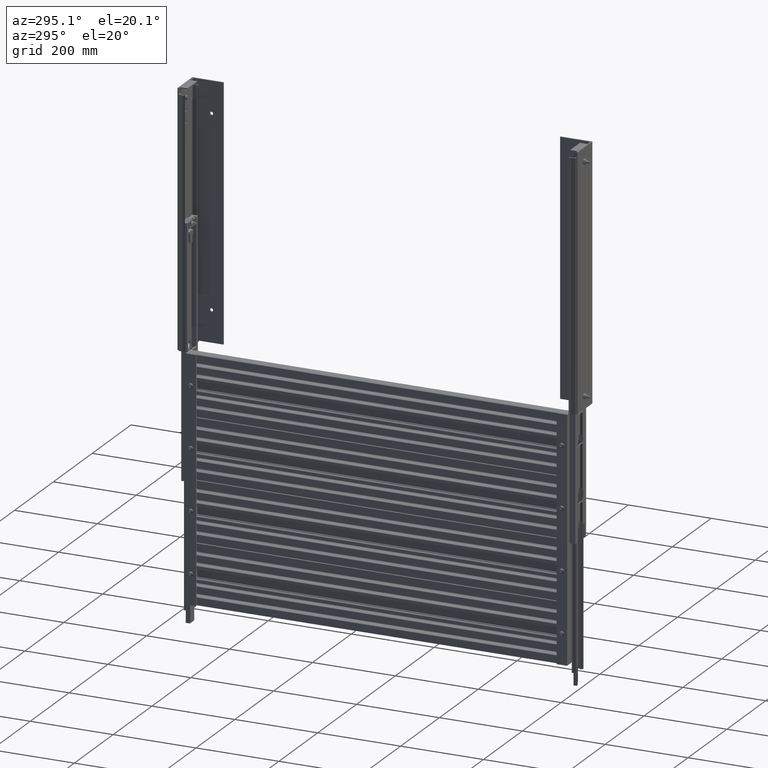
[diagram: clean part render]
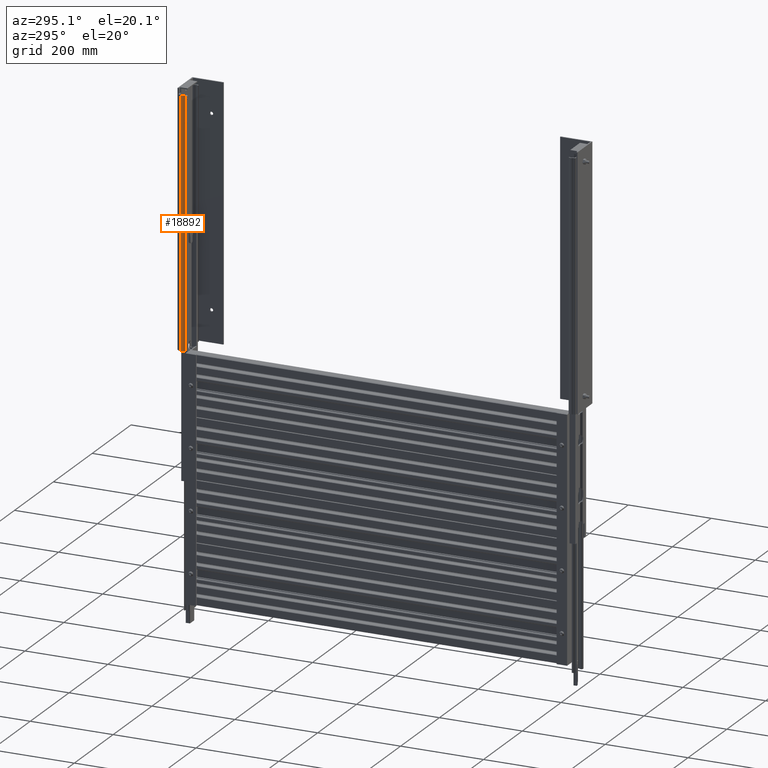
[diagram: same view with one face highlighted and labeled with its STEP entity id]
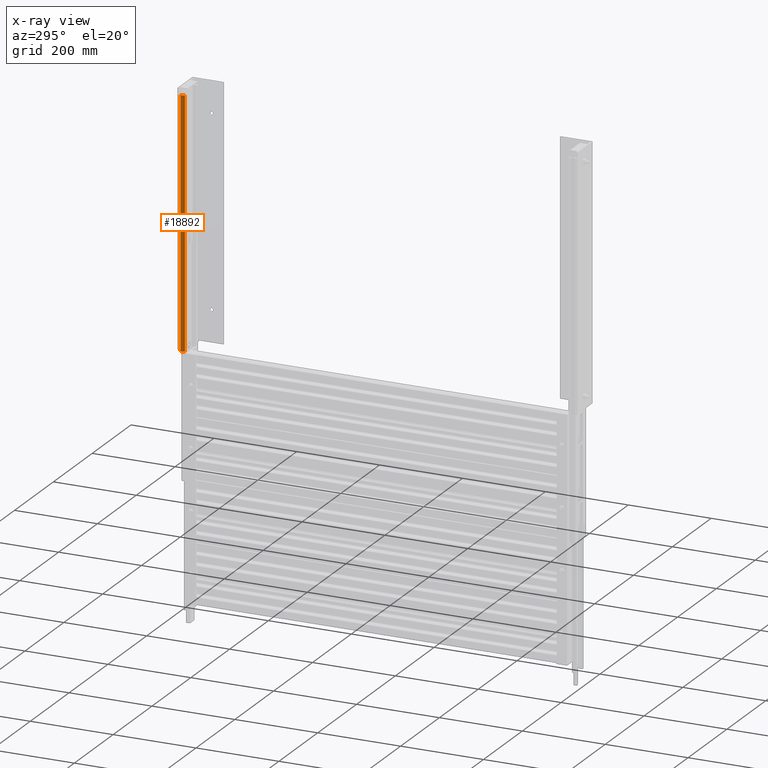
[diagram: x-ray of the same camera — body ghosted, the highlighted face saturated]
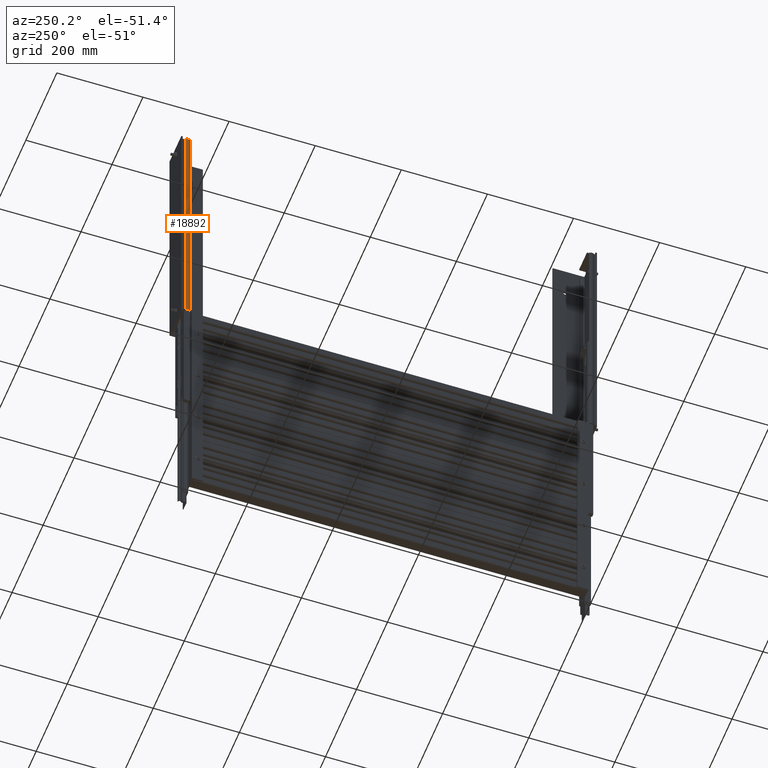
[diagram: same view with one face highlighted and labeled with its STEP entity id]
A machine part, auxiliary view. The second image highlights one B-rep face of the part: STEP entity #18892.
The next image is the same camera in x-ray: the body ghosted, the highlighted face saturated — about 0% of this face is hidden behind the body in this view.
A second angle (auxiliary view) of the same face is appended — the face is thin or edge-on in the first view.
In plain terms, the highlighted cylindrical surface (edge-blend (fillet) strip) has radius 8.8444 mm, axis along (-0, -0, -1).
Its self-contained STEP definition (entity closure, byte-faithful):
#1971 = EDGE_CURVE ( 'NONE', #12377, #8927, #11324, .T. ) ;
#2136 = EDGE_CURVE ( 'NONE', #5928, #12377, #10231, .T. ) ;
#2404 = CARTESIAN_POINT ( 'NONE',  ( -3.976814939631392300, 0.2036207327586968300, -0.5118110236220462200 ) ) ;
#4394 = ORIENTED_EDGE ( 'NONE', *, *, #1971, .F. ) ;
#5023 = EDGE_CURVE ( 'NONE', #8927, #10794, #21144, .T. ) ;
#5928 = VERTEX_POINT ( 'NONE', #10298 ) ;
#6192 = DIRECTION ( 'NONE',  ( 0.0000000000000000000, 0.0000000000000000000, 1.000000000000000000 ) ) ;
#6203 = ORIENTED_EDGE ( 'NONE', *, *, #5023, .F. ) ;
#6612 = DIRECTION ( 'NONE',  ( -0.0000000000000000000, -0.0000000000000000000, -1.000000000000000000 ) ) ;
#6745 = VECTOR ( 'NONE', #19973, 39.37007874015748100 ) ;
#7390 = AXIS2_PLACEMENT_3D ( 'NONE', #16437, #6192, #18194 ) ;
#7418 = LINE ( 'NONE', #18280, #16538 ) ;
#8447 = CYLINDRICAL_SURFACE ( 'NONE', #19573, 0.3482055189168331000 ) ;
#8927 = VERTEX_POINT ( 'NONE', #14763 ) ;
#8969 = FACE_OUTER_BOUND ( 'NONE', #13241, .T. ) ;
#9063 = CARTESIAN_POINT ( 'NONE',  ( -4.236437781382869100, -0.02842034861489969900, -0.5118110236220461100 ) ) ;
#9738 = DIRECTION ( 'NONE',  ( -0.0000000000000000000, -0.0000000000000000000, 1.000000000000000000 ) ) ;
#10231 = CIRCLE ( 'NONE', #19728, 0.3482055189168331000 ) ;
#10240 = ORIENTED_EDGE ( 'NONE', *, *, #2136, .F. ) ;
#10298 = CARTESIAN_POINT ( 'NONE',  ( -3.976814939631392300, 0.2036207327586968000, -24.00000000000000400 ) ) ;
#10596 = ORIENTED_EDGE ( 'NONE', *, *, #21537, .T. ) ;
#10794 = VERTEX_POINT ( 'NONE', #2404 ) ;
#11324 = LINE ( 'NONE', #16485, #6745 ) ;
#12377 = VERTEX_POINT ( 'NONE', #20931 ) ;
#13241 = EDGE_LOOP ( 'NONE', ( #10240, #10596, #6203, #4394 ) ) ;
#14763 = CARTESIAN_POINT ( 'NONE',  ( -3.941163338151338500, -0.2129740984506861800, -0.5118110236220464500 ) ) ;
#16437 = CARTESIAN_POINT ( 'NONE',  ( -4.236437781382869100, -0.02842034861489969900, -0.5118110236220461100 ) ) ;
#16485 = CARTESIAN_POINT ( 'NONE',  ( -3.941163338151339300, -0.2129740984506855200, -12.25590551181102200 ) ) ;
#16538 = VECTOR ( 'NONE', #9738, 39.37007874015748100 ) ;
#16862 = CARTESIAN_POINT ( 'NONE',  ( -4.236437781382869100, -0.02842034861489969900, -24.00000000000000400 ) ) ;
#18194 = DIRECTION ( 'NONE',  ( -1.000000000000000000, 8.826192653213929400E-016, 0.0000000000000000000 ) ) ;
#18280 = CARTESIAN_POINT ( 'NONE',  ( -3.976814939631392300, 0.2036207327586959400, -12.25590551181102100 ) ) ;
#18597 = DIRECTION ( 'NONE',  ( -1.000000000000000000, 0.0000000000000000000, 0.0000000000000000000 ) ) ;
#18892 = ADVANCED_FACE ( 'NONE', ( #8969 ), #8447, .T. ) ;
#19260 = DIRECTION ( 'NONE',  ( -0.0000000000000000000, -0.0000000000000000000, -1.000000000000000000 ) ) ;
#19331 = DIRECTION ( 'NONE',  ( -1.000000000000000000, 0.0000000000000000000, 0.0000000000000000000 ) ) ;
#19573 = AXIS2_PLACEMENT_3D ( 'NONE', #9063, #19260, #19331 ) ;
#19728 = AXIS2_PLACEMENT_3D ( 'NONE', #16862, #6612, #18597 ) ;
#19973 = DIRECTION ( 'NONE',  ( 0.0000000000000000000, 0.0000000000000000000, 1.000000000000000000 ) ) ;
#20931 = CARTESIAN_POINT ( 'NONE',  ( -3.941163338151339300, -0.2129740984506856800, -24.00000000000000400 ) ) ;
#21144 = CIRCLE ( 'NONE', #7390, 0.3482055189168331000 ) ;
#21537 = EDGE_CURVE ( 'NONE', #5928, #10794, #7418, .T. ) ;